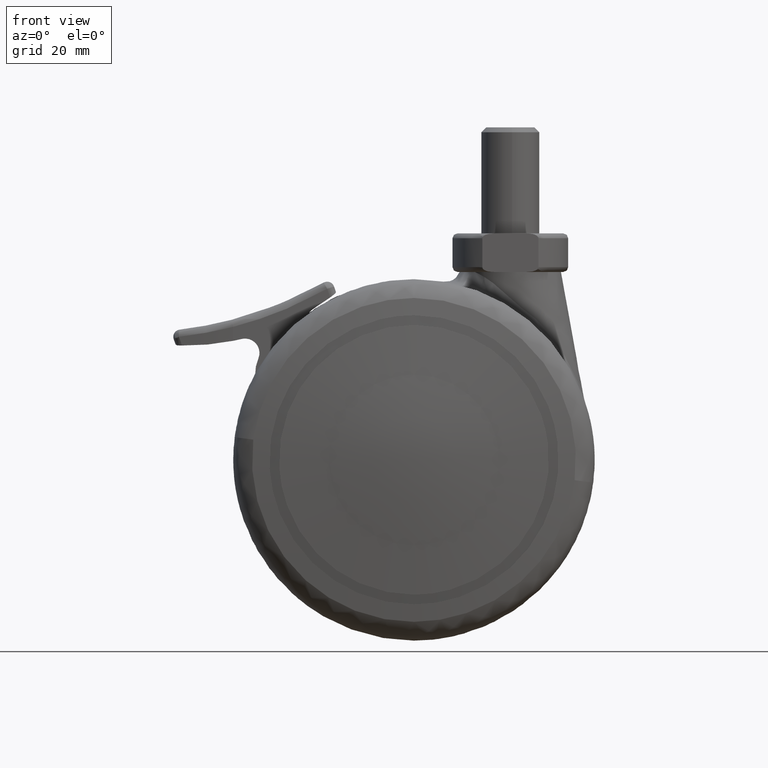
[diagram: clean part render]
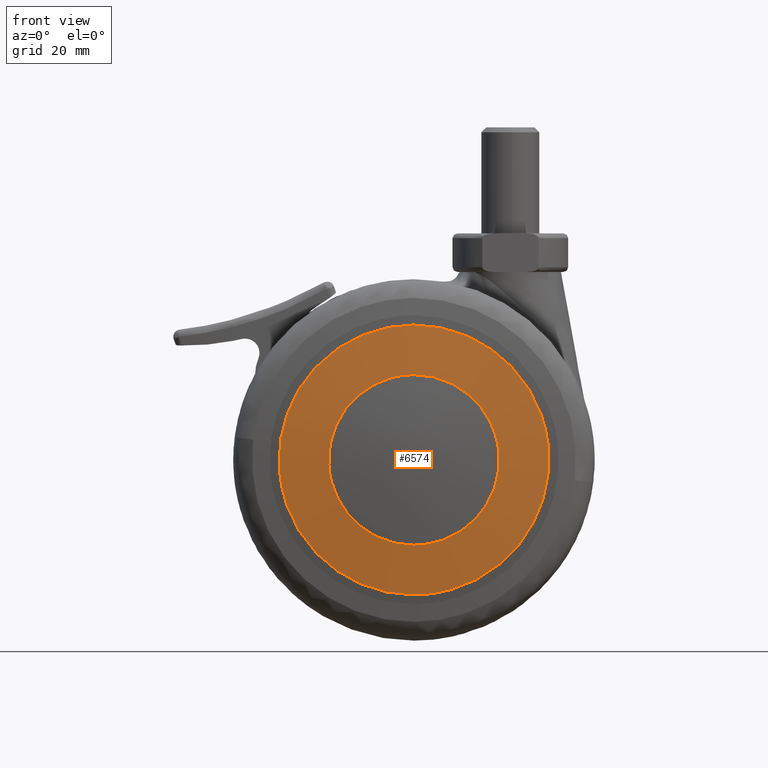
[diagram: same view with one face highlighted and labeled with its STEP entity id]
A machine part, front view. The second image highlights one B-rep face of the part: STEP entity #6574.
In plain terms, the highlighted face is a freeform B-spline surface patch.
Its self-contained STEP definition (entity closure, byte-faithful):
#5641=CARTESIAN_POINT('',(27.804269070490911,-29.554418667084001,3.304938948808563));
#5642=VERTEX_POINT('',#5641);
#5648=CARTESIAN_POINT('',(0.0,-29.554418667084001,-28.0));
#5649=VERTEX_POINT('',#5648);
#5650=CARTESIAN_POINT('',(27.804269070490911,-29.554418667083997,3.304938948808563));
#5651=CARTESIAN_POINT('',(27.999999999999993,-29.554418667084008,1.658265435745762));
#5652=CARTESIAN_POINT('',(28.0,-29.554418667084001,0.0));
#5653=CARTESIAN_POINT('',(28.000000000000004,-29.554418667084001,-28.000000000000004));
#5654=CARTESIAN_POINT('',(0.0,-29.554418667084001,-28.0));
#5662=(BOUNDED_CURVE()B_SPLINE_CURVE(2,(#5650,#5651,#5652,#5653,#5654),.UNSPECIFIED.,.F.,.U.)B_SPLINE_CURVE_WITH_KNOTS((3,2,3),(0.229562592781909,0.250000000000000,0.500000000000000),.UNSPECIFIED.)CURVE()GEOMETRIC_REPRESENTATION_ITEM()RATIONAL_B_SPLINE_CURVE((0.956026987954779,0.976056088062768,1.0,0.707106781186547,1.0))REPRESENTATION_ITEM(''));
#5663=EDGE_CURVE('',#5642,#5649,#5662,.T.);
#5665=CARTESIAN_POINT('',(-27.947776113823320,-29.554418667084001,-1.709330363264362));
#5666=VERTEX_POINT('',#5665);
#5667=CARTESIAN_POINT('',(0.0,-29.554418667084001,-28.0));
#5668=CARTESIAN_POINT('',(-26.339797013905518,-29.554418667083997,-27.999999999999996));
#5669=CARTESIAN_POINT('',(-27.947776113823313,-29.554418667083997,-1.709330363264362));
#5677=(BOUNDED_CURVE()B_SPLINE_CURVE(2,(#5667,#5668,#5669),.UNSPECIFIED.,.F.,.U.)B_SPLINE_CURVE_WITH_KNOTS((3,3),(0.500000000000000,0.739333139702820),.UNSPECIFIED.)CURVE()GEOMETRIC_REPRESENTATION_ITEM()RATIONAL_B_SPLINE_CURVE((1.0,0.719603785374846,0.976072422005882))REPRESENTATION_ITEM(''));
#5678=EDGE_CURVE('',#5649,#5666,#5677,.T.);
#5752=CARTESIAN_POINT('',(0.0,-29.554418667084001,28.0));
#5753=VERTEX_POINT('',#5752);
#5754=CARTESIAN_POINT('',(-27.947776113823313,-29.554418667083997,-1.709330363264362));
#5755=CARTESIAN_POINT('',(-28.000000000000004,-29.554418667084004,-0.855462960208515));
#5756=CARTESIAN_POINT('',(-28.0,-29.554418667084001,0.0));
#5757=CARTESIAN_POINT('',(-28.000000000000004,-29.554418667084001,28.000000000000004));
#5758=CARTESIAN_POINT('',(0.0,-29.554418667084001,28.0));
#5766=(BOUNDED_CURVE()B_SPLINE_CURVE(2,(#5754,#5755,#5756,#5757,#5758),.UNSPECIFIED.,.F.,.U.)B_SPLINE_CURVE_WITH_KNOTS((3,2,3),(0.739333139702820,0.750000000000000,1.0),.UNSPECIFIED.)CURVE()GEOMETRIC_REPRESENTATION_ITEM()RATIONAL_B_SPLINE_CURVE((0.976072422005882,0.987502995811702,1.0,0.707106781186547,1.0))REPRESENTATION_ITEM(''));
#5767=EDGE_CURVE('',#5666,#5753,#5766,.T.);
#5769=CARTESIAN_POINT('',(0.0,-29.554418667084001,28.0));
#5770=CARTESIAN_POINT('',(24.868904400260735,-29.554418667083997,28.000000000000004));
#5771=CARTESIAN_POINT('',(27.804269070490911,-29.554418667083997,3.304938948808563));
#5779=(BOUNDED_CURVE()B_SPLINE_CURVE(2,(#5769,#5770,#5771),.UNSPECIFIED.,.F.,.U.)B_SPLINE_CURVE_WITH_KNOTS((3,3),(0.0,0.229562592781909),.UNSPECIFIED.)CURVE()GEOMETRIC_REPRESENTATION_ITEM()RATIONAL_B_SPLINE_CURVE((1.0,0.731050693123779,0.956026987954779))REPRESENTATION_ITEM(''));
#5780=EDGE_CURVE('',#5753,#5642,#5779,.T.);
#5808=CARTESIAN_POINT('',(17.576266110186729,-30.500000000000000,2.089205655566477));
#5809=VERTEX_POINT('',#5808);
#5810=CARTESIAN_POINT('',(0.0,-30.500000000000000,-17.699997475913651));
#5811=VERTEX_POINT('',#5810);
#5812=CARTESIAN_POINT('',(17.576266110186729,-30.500000000000004,2.089205655566477));
#5813=CARTESIAN_POINT('',(17.699997475913655,-30.499999999999996,1.048266768423215));
#5814=CARTESIAN_POINT('',(17.699997475913651,-30.500000000000000,0.0));
#5815=CARTESIAN_POINT('',(17.699997475913651,-30.499999999999996,-17.699997475913651));
#5816=CARTESIAN_POINT('',(0.0,-30.500000000000000,-17.699997475913651));
#5824=(BOUNDED_CURVE()B_SPLINE_CURVE(2,(#5812,#5813,#5814,#5815,#5816),.UNSPECIFIED.,.F.,.U.)B_SPLINE_CURVE_WITH_KNOTS((3,2,3),(0.229562473514289,0.250000000000000,0.500000000000000),.UNSPECIFIED.)CURVE()GEOMETRIC_REPRESENTATION_ITEM()RATIONAL_B_SPLINE_CURVE((0.956026754185230,0.976055948332060,1.0,0.707106781186548,1.0))REPRESENTATION_ITEM(''));
#5825=EDGE_CURVE('',#5809,#5811,#5824,.T.);
#5866=CARTESIAN_POINT('',(-17.666983412683361,-30.500000000000000,-1.080558995761285));
#5867=VERTEX_POINT('',#5866);
#5873=CARTESIAN_POINT('',(0.0,-30.500000000000000,-17.699997475913651));
#5874=CARTESIAN_POINT('',(-16.650495009644835,-30.500000000000000,-17.699997475913655));
#5875=CARTESIAN_POINT('',(-17.666983412683361,-30.500000000000000,-1.080558995761285));
#5883=(BOUNDED_CURVE()B_SPLINE_CURVE(2,(#5873,#5874,#5875),.UNSPECIFIED.,.F.,.U.)B_SPLINE_CURVE_WITH_KNOTS((3,3),(0.500000000000000,0.739332962240286),.UNSPECIFIED.)CURVE()GEOMETRIC_REPRESENTATION_ITEM()RATIONAL_B_SPLINE_CURVE((1.0,0.719603993285136,0.976072041669597))REPRESENTATION_ITEM(''));
#5884=EDGE_CURVE('',#5811,#5867,#5883,.T.);
#5907=CARTESIAN_POINT('',(0.0,-30.500000000000000,17.699997475913651));
#5908=VERTEX_POINT('',#5907);
#5909=CARTESIAN_POINT('',(0.0,-30.500000000000000,17.699997475913651));
#5910=CARTESIAN_POINT('',(15.720686867383085,-30.500000000000000,17.699997475913648));
#5911=CARTESIAN_POINT('',(17.576266110186729,-30.500000000000004,2.089205655566477));
#5919=(BOUNDED_CURVE()B_SPLINE_CURVE(2,(#5909,#5910,#5911),.UNSPECIFIED.,.F.,.U.)B_SPLINE_CURVE_WITH_KNOTS((3,3),(0.0,0.229562473514289),.UNSPECIFIED.)CURVE()GEOMETRIC_REPRESENTATION_ITEM()RATIONAL_B_SPLINE_CURVE((1.0,0.731050832854488,0.956026754185230))REPRESENTATION_ITEM(''));
#5920=EDGE_CURVE('',#5908,#5809,#5919,.T.);
#5922=CARTESIAN_POINT('',(-17.666983412683354,-30.500000000000007,-1.080558995761285));
#5923=CARTESIAN_POINT('',(-17.699997475913644,-30.500000000000000,-0.540783833353554));
#5924=CARTESIAN_POINT('',(-17.699997475913651,-30.500000000000000,0.0));
#5925=CARTESIAN_POINT('',(-17.699997475913651,-30.499999999999996,17.699997475913651));
#5926=CARTESIAN_POINT('',(0.0,-30.500000000000000,17.699997475913651));
#5934=(BOUNDED_CURVE()B_SPLINE_CURVE(2,(#5922,#5923,#5924,#5925,#5926),.UNSPECIFIED.,.F.,.U.)B_SPLINE_CURVE_WITH_KNOTS((3,2,3),(0.739332962240286,0.750000000000000,1.0),.UNSPECIFIED.)CURVE()GEOMETRIC_REPRESENTATION_ITEM()RATIONAL_B_SPLINE_CURVE((0.976072041669597,0.987502787901411,1.0,0.707106781186548,1.0))REPRESENTATION_ITEM(''));
#5935=EDGE_CURVE('',#5867,#5908,#5934,.T.);
#6538=CARTESIAN_POINT('',(-30.659604645560563,-27.338528181990792,-30.660279718124212));
#6539=CARTESIAN_POINT('',(-15.388104085153493,-29.225700931972938,-30.776885810282717));
#6540=CARTESIAN_POINT('',(15.388193153801804,-29.225700931972938,-30.776885810282707));
#6541=CARTESIAN_POINT('',(30.659780763203887,-27.338506418223339,-30.660278373367664));
#6542=CARTESIAN_POINT('',(-30.776213324717403,-29.225784353661158,-15.388445482403327));
#6543=CARTESIAN_POINT('',(-15.446853599850730,-31.127366999999879,-15.447193713403401));
#6544=CARTESIAN_POINT('',(15.446943008550020,-31.127366999999879,-15.447193713403401));
#6545=CARTESIAN_POINT('',(30.776390107060809,-29.225762424029195,-15.388444804900779));
#6546=CARTESIAN_POINT('',(-30.776213324717403,-29.225784353661158,15.388448718280936));
#6547=CARTESIAN_POINT('',(-15.446853599850730,-31.127366999999879,15.447196961634569));
#6548=CARTESIAN_POINT('',(15.446943008550020,-31.127366999999879,15.447196961634569));
#6549=CARTESIAN_POINT('',(30.776390107060809,-29.225762424029195,15.388448040778245));
#6550=CARTESIAN_POINT('',(-30.659604596705496,-27.338527391294683,30.660286116502295));
#6551=CARTESIAN_POINT('',(-15.388104060539801,-29.225700135251095,30.776892232808372));
#6552=CARTESIAN_POINT('',(15.388193129187968,-29.225700135251095,30.776892232808382));
#6553=CARTESIAN_POINT('',(30.659780714348543,-27.338505627527312,30.660284771745495));
#6561=(BOUNDED_SURFACE()B_SPLINE_SURFACE(2,2,((#6538,#6542,#6546,#6550),(#6539,#6543,#6547,#6551),(#6540,#6544,#6548,#6552),(#6541,#6545,#6549,#6553)),.UNSPECIFIED.,.F.,.F.,.U.)B_SPLINE_SURFACE_WITH_KNOTS((3,1,3),(3,1,3),(82.359556913375854,112.451119120043600,142.542855501174900),(82.358894348144531,112.451119120043600,142.543350219726590),.UNSPECIFIED.)GEOMETRIC_REPRESENTATION_ITEM()RATIONAL_B_SPLINE_SURFACE(((1.007635537276074,1.003817684578163,1.003817684578163,1.007635538881708),(1.003817852697911,1.0,1.0,1.003817854303545),(1.003817852697911,1.0,1.0,1.003817854303545),(1.007635581470861,1.003817728772950,1.003817728772950,1.007635583076495)))REPRESENTATION_ITEM('')SURFACE());
#6562=ORIENTED_EDGE('',*,*,#5767,.F.);
#6563=ORIENTED_EDGE('',*,*,#5678,.F.);
#6564=ORIENTED_EDGE('',*,*,#5663,.F.);
#6565=ORIENTED_EDGE('',*,*,#5780,.F.);
#6566=EDGE_LOOP('',(#6562,#6563,#6564,#6565));
#6567=FACE_OUTER_BOUND('',#6566,.T.);
#6568=ORIENTED_EDGE('',*,*,#5884,.T.);
#6569=ORIENTED_EDGE('',*,*,#5935,.T.);
#6570=ORIENTED_EDGE('',*,*,#5920,.T.);
#6571=ORIENTED_EDGE('',*,*,#5825,.T.);
#6572=EDGE_LOOP('',(#6568,#6569,#6570,#6571));
#6573=FACE_BOUND('',#6572,.T.);
#6574=ADVANCED_FACE('',(#6567,#6573),#6561,.T.);